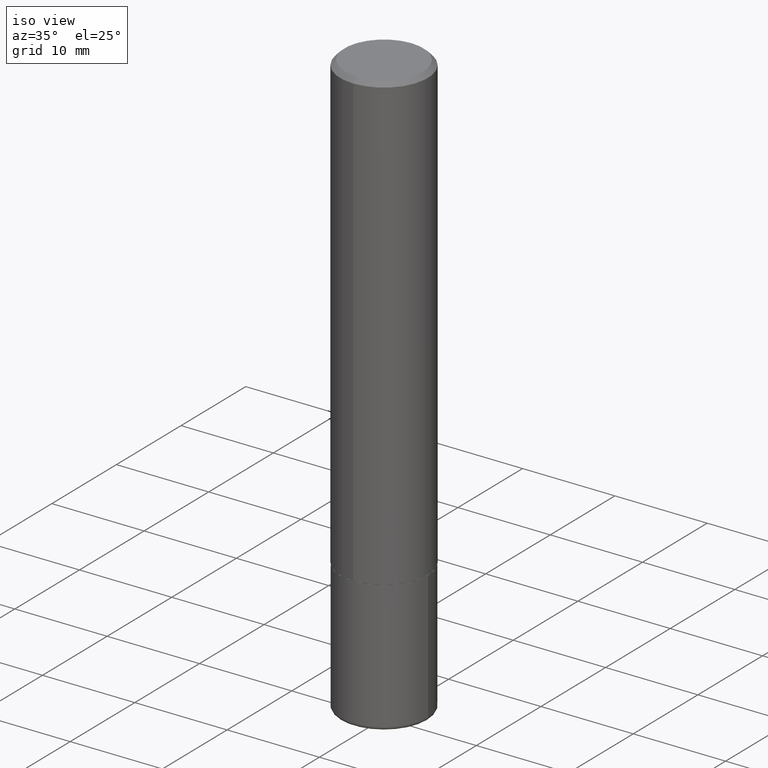
[diagram: clean part render]
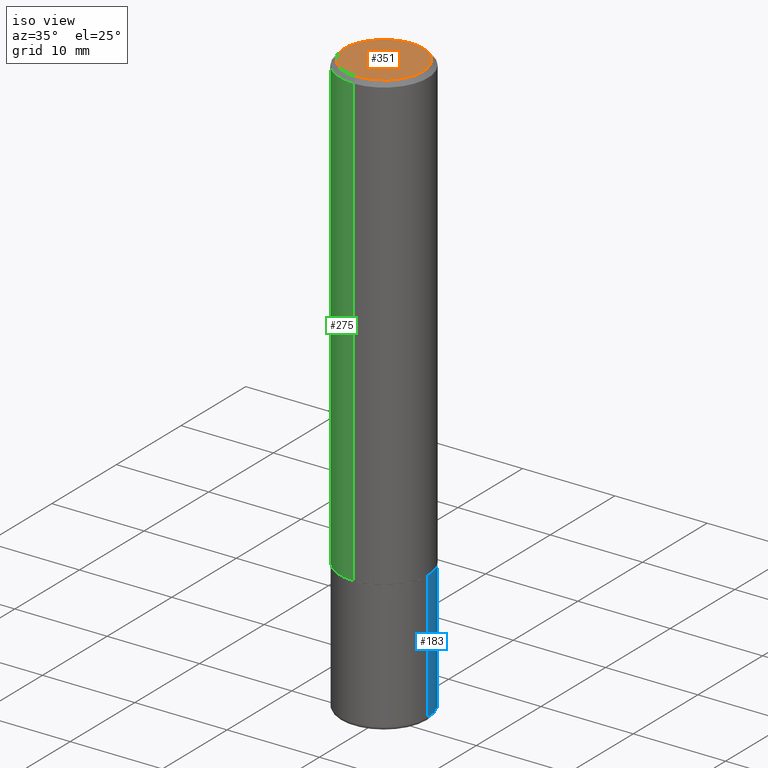
[diagram: same view with three faces highlighted in distinct colors, each labeled with its STEP entity id]
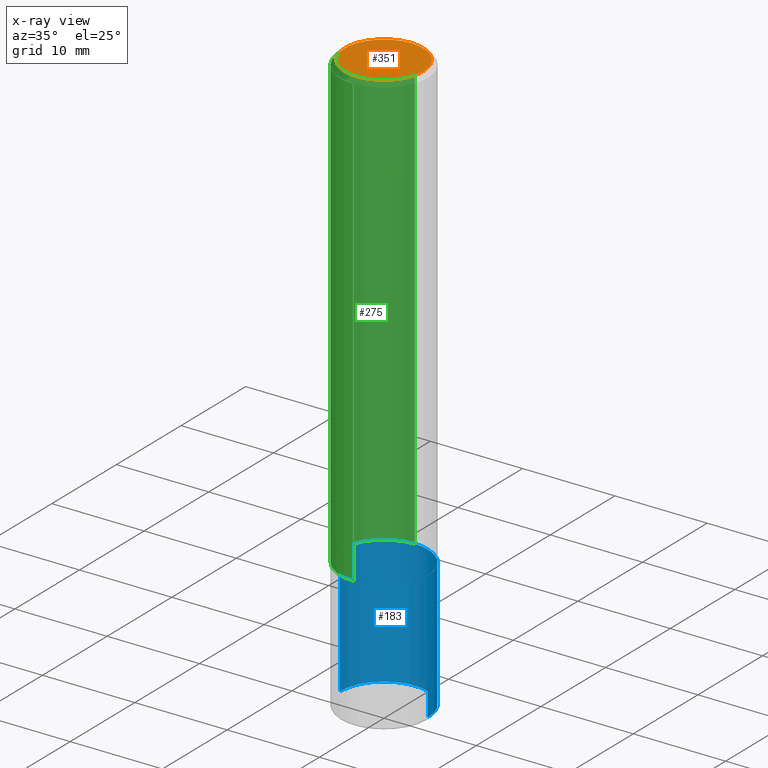
[diagram: x-ray of the same camera — body ghosted, the three highlighted faces saturated]
A machine part, iso view with three faces highlighted in distinct colors.
The next image is the same camera in x-ray (body ghosted, the three faces saturated) — at least one of them is partly hidden behind the body in this view.
Their STEP definitions:

[orange] entity #351 — the highlighted planar face has unit normal (0, -0, -1).
#17 = DIRECTION ( 'NONE',  ( -6.982962677686266711E-15, -1.000000000000000000, 3.490050190067182498E-15 ) ) ;
#38 = DIRECTION ( 'NONE',  ( -2.446468172034013014E-29, 3.490050190067182892E-15, 1.000000000000000000 ) ) ;
#42 = CARTESIAN_POINT ( 'NONE',  ( 1.239475875289311118E-15, 0.1674999999999996492, -2.689531999887951949E-16 ) ) ;
#67 = AXIS2_PLACEMENT_3D ( 'NONE', #157, #38, #208 ) ;
#75 = PLANE ( 'NONE',  #169 ) ;
#104 = VERTEX_POINT ( 'NONE', #42 ) ;
#126 = DIRECTION ( 'NONE',  ( 6.982962677686265922E-15, 1.000000000000000000, -3.490050190067182892E-15 ) ) ;
#129 = VERTEX_POINT ( 'NONE', #396 ) ;
#131 = EDGE_LOOP ( 'NONE', ( #155, #313 ) ) ;
#155 = ORIENTED_EDGE ( 'NONE', *, *, #300, .T. ) ;
#157 = CARTESIAN_POINT ( 'NONE',  ( -7.721792551848147556E-45, 1.101565263398910522E-30, 3.156302068474566507E-16 ) ) ;
#169 = AXIS2_PLACEMENT_3D ( 'NONE', #198, #350, #126 ) ;
#198 = CARTESIAN_POINT ( 'NONE',  ( 1.169646248512447229E-15, 0.1674999999999996492, -4.267683034125235203E-16 ) ) ;
#208 = DIRECTION ( 'NONE',  ( -6.982962677686266711E-15, -1.000000000000000000, 3.490050190067182498E-15 ) ) ;
#210 = CARTESIAN_POINT ( 'NONE',  ( -7.721792551848147556E-45, 1.101565263398910522E-30, 3.156302068474566507E-16 ) ) ;
#224 = FACE_OUTER_BOUND ( 'NONE', #131, .T. ) ;
#300 = EDGE_CURVE ( 'NONE', #104, #129, #334, .T. ) ;
#313 = ORIENTED_EDGE ( 'NONE', *, *, #377, .T. ) ;
#334 = CIRCLE ( 'NONE', #67, 0.1674999999999996492 ) ;
#340 = AXIS2_PLACEMENT_3D ( 'NONE', #210, #402, #17 ) ;
#350 = DIRECTION ( 'NONE',  ( 2.446468172034012734E-29, -3.490050190067182892E-15, -1.000000000000000000 ) ) ;
#351 = ADVANCED_FACE ( 'NONE', ( #224 ), #75, .F. ) ;
#377 = EDGE_CURVE ( 'NONE', #129, #104, #411, .T. ) ;
#396 = CARTESIAN_POINT ( 'NONE',  ( -1.217738394604445259E-15, -0.1674999999999996492, 9.002136136837084964E-16 ) ) ;
#402 = DIRECTION ( 'NONE',  ( -2.446468172034013014E-29, 3.490050190067182892E-15, 1.000000000000000000 ) ) ;
#411 = CIRCLE ( 'NONE', #340, 0.1674999999999996492 ) ;

[blue] entity #183 — the highlighted cylindrical surface (partial cylindrical patch) has radius 4.7625 mm, axis along (-0, 0, 1).
#15 = AXIS2_PLACEMENT_3D ( 'NONE', #274, #374, #215 ) ;
#31 = VECTOR ( 'NONE', #175, 39.37007874015748143 ) ;
#48 = CARTESIAN_POINT ( 'NONE',  ( 0.000000000000000000, 0.000000000000000000, 0.000000000000000000 ) ) ;
#50 = CARTESIAN_POINT ( 'NONE',  ( 0.1874999999999999722, -1.309305502066174811E-15, 9.142831454617378210E-30 ) ) ;
#55 = VERTEX_POINT ( 'NONE', #234 ) ;
#60 = EDGE_CURVE ( 'NONE', #259, #55, #359, .T. ) ;
#63 = ORIENTED_EDGE ( 'NONE', *, *, #167, .T. ) ;
#76 = DIRECTION ( 'NONE',  ( -2.445468806185136877E-29, 3.491481338843145188E-15, 1.000000000000000000 ) ) ;
#77 = EDGE_LOOP ( 'NONE', ( #63, #141, #207, #99 ) ) ;
#86 = CARTESIAN_POINT ( 'NONE',  ( 4.739318546386794397E-29, -6.766490834678016045E-15, -1.937999999999999945 ) ) ;
#99 = ORIENTED_EDGE ( 'NONE', *, *, #195, .F. ) ;
#110 = VECTOR ( 'NONE', #76, 39.37007874015748143 ) ;
#141 = ORIENTED_EDGE ( 'NONE', *, *, #60, .T. ) ;
#143 = CIRCLE ( 'NONE', #246, 0.1874999999999999722 ) ;
#167 = EDGE_CURVE ( 'NONE', #322, #259, #373, .T. ) ;
#175 = DIRECTION ( 'NONE',  ( -2.445468806185136877E-29, 3.491481338843145188E-15, 1.000000000000000000 ) ) ;
#183 = ADVANCED_FACE ( 'NONE', ( #370 ), #241, .T. ) ;
#195 = EDGE_CURVE ( 'NONE', #322, #228, #212, .T. ) ;
#207 = ORIENTED_EDGE ( 'NONE', *, *, #229, .F. ) ;
#212 = LINE ( 'NONE', #50, #31 ) ;
#215 = DIRECTION ( 'NONE',  ( 1.000000000000000000, -6.982962677686269077E-15, 0.000000000000000000 ) ) ;
#228 = VERTEX_POINT ( 'NONE', #407 ) ;
#229 = EDGE_CURVE ( 'NONE', #228, #55, #143, .T. ) ;
#234 = CARTESIAN_POINT ( 'NONE',  ( -0.1874999999999999722, -6.389143351301428514E-15, -1.937999999999999945 ) ) ;
#241 = CYLINDRICAL_SURFACE ( 'NONE', #405, 0.1874999999999999722 ) ;
#246 = AXIS2_PLACEMENT_3D ( 'NONE', #86, #388, #394 ) ;
#259 = VERTEX_POINT ( 'NONE', #362 ) ;
#274 = CARTESIAN_POINT ( 'NONE',  ( 6.076989983370064174E-29, -8.676331127025216680E-15, -2.484999999999999876 ) ) ;
#322 = VERTEX_POINT ( 'NONE', #332 ) ;
#328 = CARTESIAN_POINT ( 'NONE',  ( -0.1874999999999999722, 1.332267629550187651E-15, -9.223003294227946589E-30 ) ) ;
#332 = CARTESIAN_POINT ( 'NONE',  ( 0.1875000000000000555, -9.985636629091391688E-15, -2.484999999999999876 ) ) ;
#333 = DIRECTION ( 'NONE',  ( 1.000000000000000000, -6.982962677686266711E-15, 4.876176775795935793E-29 ) ) ;
#359 = LINE ( 'NONE', #328, #110 ) ;
#362 = CARTESIAN_POINT ( 'NONE',  ( -0.1875000000000000555, -7.344063497475028832E-15, -2.484999999999999876 ) ) ;
#370 = FACE_OUTER_BOUND ( 'NONE', #77, .T. ) ;
#373 = CIRCLE ( 'NONE', #15, 0.1874999999999999722 ) ;
#374 = DIRECTION ( 'NONE',  ( -2.445468806185136597E-29, 3.491481338843145583E-15, 1.000000000000000000 ) ) ;
#388 = DIRECTION ( 'NONE',  ( -2.445468806185136597E-29, 3.491481338843145583E-15, 1.000000000000000000 ) ) ;
#394 = DIRECTION ( 'NONE',  ( 1.000000000000000000, -6.982962677686269077E-15, 0.000000000000000000 ) ) ;
#399 = DIRECTION ( 'NONE',  ( -2.445468806185136597E-29, 3.491481338843145583E-15, 1.000000000000000000 ) ) ;
#405 = AXIS2_PLACEMENT_3D ( 'NONE', #48, #399, #333 ) ;
#407 = CARTESIAN_POINT ( 'NONE',  ( 0.1874999999999999722, -8.075796336744191053E-15, -1.937999999999999945 ) ) ;

[green] entity #275 — the highlighted cylindrical surface (partial cylindrical patch) has radius 4.7625 mm, axis along (-0, 0, 1).
#4 = VERTEX_POINT ( 'NONE', #258 ) ;
#11 = DIRECTION ( 'NONE',  ( -6.982962677686266711E-15, -1.000000000000000000, 3.483106191921935949E-15 ) ) ;
#18 = AXIS2_PLACEMENT_3D ( 'NONE', #311, #166, #11 ) ;
#27 = EDGE_CURVE ( 'NONE', #4, #289, #117, .T. ) ;
#33 = ORIENTED_EDGE ( 'NONE', *, *, #271, .F. ) ;
#39 = EDGE_CURVE ( 'NONE', #289, #267, #72, .T. ) ;
#72 = LINE ( 'NONE', #200, #93 ) ;
#93 = VECTOR ( 'NONE', #324, 39.37007874015748143 ) ;
#103 = CARTESIAN_POINT ( 'NONE',  ( 1.332267629550188243E-15, 0.1875000000000000833, -6.543844106375971128E-16 ) ) ;
#107 = AXIS2_PLACEMENT_3D ( 'NONE', #149, #380, #356 ) ;
#116 = EDGE_CURVE ( 'NONE', #416, #267, #142, .T. ) ;
#117 = CIRCLE ( 'NONE', #107, 0.1875000000000001943 ) ;
#127 = CYLINDRICAL_SURFACE ( 'NONE', #390, 0.1875000000000000833 ) ;
#134 = LINE ( 'NONE', #103, #216 ) ;
#142 = CIRCLE ( 'NONE', #18, 0.1874999999999999722 ) ;
#149 = CARTESIAN_POINT ( 'NONE',  ( 4.738808849229882845E-29, -6.760227218160132917E-15, -1.936999999999999833 ) ) ;
#154 = FACE_OUTER_BOUND ( 'NONE', #367, .T. ) ;
#166 = DIRECTION ( 'NONE',  ( -2.446468172034013014E-29, 3.490050190067182892E-15, 1.000000000000000000 ) ) ;
#200 = CARTESIAN_POINT ( 'NONE',  ( -1.309305502066175600E-15, -0.1875000000000000833, 6.543844106375971128E-16 ) ) ;
#216 = VECTOR ( 'NONE', #314, 39.37007874015748143 ) ;
#217 = CARTESIAN_POINT ( 'NONE',  ( 1.309305502066175205E-15, 0.1874999999999999167, -0.02000000000000073941 ) ) ;
#223 = ORIENTED_EDGE ( 'NONE', *, *, #27, .T. ) ;
#232 = DIRECTION ( 'NONE',  ( -6.982962677686266711E-15, -1.000000000000000000, 3.490050190067182892E-15 ) ) ;
#233 = ORIENTED_EDGE ( 'NONE', *, *, #39, .T. ) ;
#258 = CARTESIAN_POINT ( 'NONE',  ( 1.332267629550212500E-15, 0.1874999999999934219, -1.937000000000000499 ) ) ;
#267 = VERTEX_POINT ( 'NONE', #329 ) ;
#271 = EDGE_CURVE ( 'NONE', #4, #416, #134, .T. ) ;
#275 = ADVANCED_FACE ( 'NONE', ( #154 ), #127, .T. ) ;
#289 = VERTEX_POINT ( 'NONE', #320 ) ;
#311 = CARTESIAN_POINT ( 'NONE',  ( 4.892936344068047188E-31, -6.980100380134394825E-17, -0.02000000000000008715 ) ) ;
#314 = DIRECTION ( 'NONE',  ( -2.446468172034013014E-29, 3.490050190067182892E-15, 1.000000000000000000 ) ) ;
#320 = CARTESIAN_POINT ( 'NONE',  ( -1.309305502066128860E-15, -0.1875000000000069389, -1.936999999999999389 ) ) ;
#324 = DIRECTION ( 'NONE',  ( -2.446468172034013014E-29, 3.490050190067182892E-15, 1.000000000000000000 ) ) ;
#325 = ORIENTED_EDGE ( 'NONE', *, *, #116, .F. ) ;
#329 = CARTESIAN_POINT ( 'NONE',  ( -1.286343374582161379E-15, -0.1875000000000000555, -0.01999999999999943143 ) ) ;
#356 = DIRECTION ( 'NONE',  ( -6.982962677686265922E-15, -1.000000000000000000, 2.913971193241877611E-15 ) ) ;
#360 = DIRECTION ( 'NONE',  ( -2.446468172034013014E-29, 3.490050190067182892E-15, 1.000000000000000000 ) ) ;
#367 = EDGE_LOOP ( 'NONE', ( #33, #223, #233, #325 ) ) ;
#380 = DIRECTION ( 'NONE',  ( -2.446468172034013014E-29, 3.490050190067182892E-15, 1.000000000000000000 ) ) ;
#385 = CARTESIAN_POINT ( 'NONE',  ( 0.000000000000000000, 0.000000000000000000, 0.000000000000000000 ) ) ;
#390 = AXIS2_PLACEMENT_3D ( 'NONE', #385, #360, #232 ) ;
#416 = VERTEX_POINT ( 'NONE', #217 ) ;